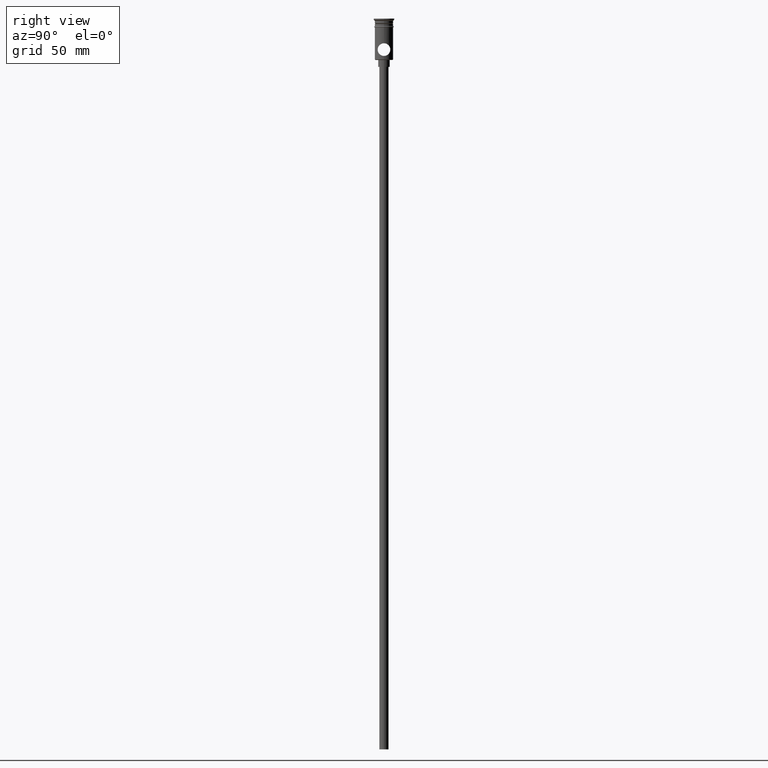
[diagram: clean part render]
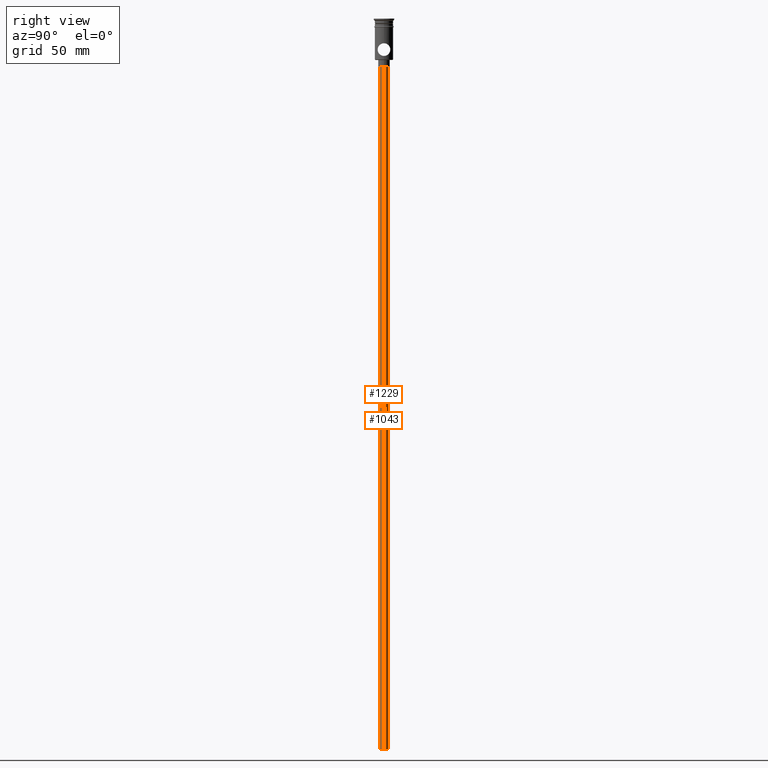
[diagram: same view with one multi-face feature highlighted, each face labeled with its STEP entity id]
A machine part, right view. The highlighted faces form ONE feature: a constant-radius fillet chain: 2 tangent blend faces with common blend radius 2 mm. The faces share edges in the B-rep.
Their STEP definitions:
[1] entity #1043 (Cylinder):
#1 = DIRECTION ( 'NONE',  ( -1.000000000000000000, 0.000000000000000000, 0.000000000000000000 ) ) ;
#49 = VERTEX_POINT ( 'NONE', #904 ) ;
#103 = VERTEX_POINT ( 'NONE', #1131 ) ;
#104 = CIRCLE ( 'NONE', #1094, 2.000000000000000000 ) ;
#111 = CARTESIAN_POINT ( 'NONE',  ( 0.000000000000000000, 0.000000000000000000, -318.0000000000000000 ) ) ;
#170 = CARTESIAN_POINT ( 'NONE',  ( 0.000000000000000000, 0.000000000000000000, -318.0000000000000000 ) ) ;
#233 = AXIS2_PLACEMENT_3D ( 'NONE', #111, #1325, #1 ) ;
#271 = CIRCLE ( 'NONE', #233, 2.000000000000000000 ) ;
#292 = DIRECTION ( 'NONE',  ( -0.000000000000000000, -0.000000000000000000, 1.000000000000000000 ) ) ;
#301 = VECTOR ( 'NONE', #1298, 1000.000000000000000 ) ;
#316 = DIRECTION ( 'NONE',  ( -0.000000000000000000, -0.000000000000000000, 1.000000000000000000 ) ) ;
#361 = LINE ( 'NONE', #1023, #1074 ) ;
#387 = DIRECTION ( 'NONE',  ( 0.000000000000000000, 0.000000000000000000, -1.000000000000000000 ) ) ;
#399 = CARTESIAN_POINT ( 'NONE',  ( 2.000000000000000000, 0.000000000000000000, -20.99999999999999645 ) ) ;
#402 = CARTESIAN_POINT ( 'NONE',  ( -2.000000000000000000, 2.449293598294706414E-16, -20.99999999999999645 ) ) ;
#432 = ORIENTED_EDGE ( 'NONE', *, *, #979, .F. ) ;
#433 = EDGE_CURVE ( 'NONE', #49, #1416, #595, .T. ) ;
#504 = ORIENTED_EDGE ( 'NONE', *, *, #1139, .F. ) ;
#595 = LINE ( 'NONE', #1038, #301 ) ;
#664 = EDGE_CURVE ( 'NONE', #1416, #924, #104, .T. ) ;
#691 = ORIENTED_EDGE ( 'NONE', *, *, #433, .T. ) ;
#704 = CYLINDRICAL_SURFACE ( 'NONE', #1017, 2.000000000000000000 ) ;
#904 = CARTESIAN_POINT ( 'NONE',  ( -2.000000000000000000, 2.449293598294706414E-16, -318.0000000000000000 ) ) ;
#924 = VERTEX_POINT ( 'NONE', #399 ) ;
#970 = ORIENTED_EDGE ( 'NONE', *, *, #664, .T. ) ;
#979 = EDGE_CURVE ( 'NONE', #49, #103, #271, .T. ) ;
#1017 = AXIS2_PLACEMENT_3D ( 'NONE', #170, #292, #1057 ) ;
#1023 = CARTESIAN_POINT ( 'NONE',  ( 2.000000000000000000, 0.000000000000000000, -318.0000000000000000 ) ) ;
#1038 = CARTESIAN_POINT ( 'NONE',  ( -2.000000000000000000, 2.449293598294706414E-16, -318.0000000000000000 ) ) ;
#1043 = ADVANCED_FACE ( 'NONE', ( #1047 ), #704, .T. ) ;
#1047 = FACE_OUTER_BOUND ( 'NONE', #1072, .T. ) ;
#1057 = DIRECTION ( 'NONE',  ( 1.000000000000000000, 0.000000000000000000, 0.000000000000000000 ) ) ;
#1067 = CARTESIAN_POINT ( 'NONE',  ( 0.000000000000000000, 0.000000000000000000, -20.99999999999999645 ) ) ;
#1072 = EDGE_LOOP ( 'NONE', ( #432, #691, #970, #504 ) ) ;
#1074 = VECTOR ( 'NONE', #316, 1000.000000000000000 ) ;
#1094 = AXIS2_PLACEMENT_3D ( 'NONE', #1067, #387, #1169 ) ;
#1131 = CARTESIAN_POINT ( 'NONE',  ( 2.000000000000000000, 0.000000000000000000, -318.0000000000000000 ) ) ;
#1139 = EDGE_CURVE ( 'NONE', #103, #924, #361, .T. ) ;
#1169 = DIRECTION ( 'NONE',  ( -1.000000000000000000, 0.000000000000000000, 0.000000000000000000 ) ) ;
#1298 = DIRECTION ( 'NONE',  ( -0.000000000000000000, -0.000000000000000000, 1.000000000000000000 ) ) ;
#1325 = DIRECTION ( 'NONE',  ( 0.000000000000000000, 0.000000000000000000, -1.000000000000000000 ) ) ;
#1416 = VERTEX_POINT ( 'NONE', #402 ) ;
[2] entity #1229 (Cylinder):
#12 = FACE_OUTER_BOUND ( 'NONE', #667, .T. ) ;
#49 = VERTEX_POINT ( 'NONE', #904 ) ;
#103 = VERTEX_POINT ( 'NONE', #1131 ) ;
#156 = DIRECTION ( 'NONE',  ( 0.000000000000000000, 0.000000000000000000, -1.000000000000000000 ) ) ;
#235 = AXIS2_PLACEMENT_3D ( 'NONE', #803, #156, #576 ) ;
#245 = CIRCLE ( 'NONE', #791, 2.000000000000000000 ) ;
#250 = EDGE_CURVE ( 'NONE', #103, #49, #1377, .T. ) ;
#301 = VECTOR ( 'NONE', #1298, 1000.000000000000000 ) ;
#316 = DIRECTION ( 'NONE',  ( -0.000000000000000000, -0.000000000000000000, 1.000000000000000000 ) ) ;
#361 = LINE ( 'NONE', #1023, #1074 ) ;
#399 = CARTESIAN_POINT ( 'NONE',  ( 2.000000000000000000, 0.000000000000000000, -20.99999999999999645 ) ) ;
#402 = CARTESIAN_POINT ( 'NONE',  ( -2.000000000000000000, 2.449293598294706414E-16, -20.99999999999999645 ) ) ;
#433 = EDGE_CURVE ( 'NONE', #49, #1416, #595, .T. ) ;
#500 = EDGE_CURVE ( 'NONE', #924, #1416, #245, .T. ) ;
#570 = CYLINDRICAL_SURFACE ( 'NONE', #1278, 2.000000000000000000 ) ;
#576 = DIRECTION ( 'NONE',  ( -1.000000000000000000, 0.000000000000000000, 0.000000000000000000 ) ) ;
#592 = ORIENTED_EDGE ( 'NONE', *, *, #1139, .T. ) ;
#595 = LINE ( 'NONE', #1038, #301 ) ;
#642 = DIRECTION ( 'NONE',  ( -0.000000000000000000, -0.000000000000000000, 1.000000000000000000 ) ) ;
#667 = EDGE_LOOP ( 'NONE', ( #874, #1288, #592, #1417 ) ) ;
#791 = AXIS2_PLACEMENT_3D ( 'NONE', #994, #875, #982 ) ;
#803 = CARTESIAN_POINT ( 'NONE',  ( 0.000000000000000000, 0.000000000000000000, -318.0000000000000000 ) ) ;
#874 = ORIENTED_EDGE ( 'NONE', *, *, #433, .F. ) ;
#875 = DIRECTION ( 'NONE',  ( 0.000000000000000000, 0.000000000000000000, -1.000000000000000000 ) ) ;
#904 = CARTESIAN_POINT ( 'NONE',  ( -2.000000000000000000, 2.449293598294706414E-16, -318.0000000000000000 ) ) ;
#924 = VERTEX_POINT ( 'NONE', #399 ) ;
#982 = DIRECTION ( 'NONE',  ( -1.000000000000000000, 0.000000000000000000, 0.000000000000000000 ) ) ;
#994 = CARTESIAN_POINT ( 'NONE',  ( 0.000000000000000000, 0.000000000000000000, -20.99999999999999645 ) ) ;
#1023 = CARTESIAN_POINT ( 'NONE',  ( 2.000000000000000000, 0.000000000000000000, -318.0000000000000000 ) ) ;
#1038 = CARTESIAN_POINT ( 'NONE',  ( -2.000000000000000000, 2.449293598294706414E-16, -318.0000000000000000 ) ) ;
#1074 = VECTOR ( 'NONE', #316, 1000.000000000000000 ) ;
#1116 = DIRECTION ( 'NONE',  ( 1.000000000000000000, 0.000000000000000000, 0.000000000000000000 ) ) ;
#1131 = CARTESIAN_POINT ( 'NONE',  ( 2.000000000000000000, 0.000000000000000000, -318.0000000000000000 ) ) ;
#1139 = EDGE_CURVE ( 'NONE', #103, #924, #361, .T. ) ;
#1215 = CARTESIAN_POINT ( 'NONE',  ( 0.000000000000000000, 0.000000000000000000, -318.0000000000000000 ) ) ;
#1229 = ADVANCED_FACE ( 'NONE', ( #12 ), #570, .T. ) ;
#1278 = AXIS2_PLACEMENT_3D ( 'NONE', #1215, #642, #1116 ) ;
#1288 = ORIENTED_EDGE ( 'NONE', *, *, #250, .F. ) ;
#1298 = DIRECTION ( 'NONE',  ( -0.000000000000000000, -0.000000000000000000, 1.000000000000000000 ) ) ;
#1377 = CIRCLE ( 'NONE', #235, 2.000000000000000000 ) ;
#1416 = VERTEX_POINT ( 'NONE', #402 ) ;
#1417 = ORIENTED_EDGE ( 'NONE', *, *, #500, .T. ) ;